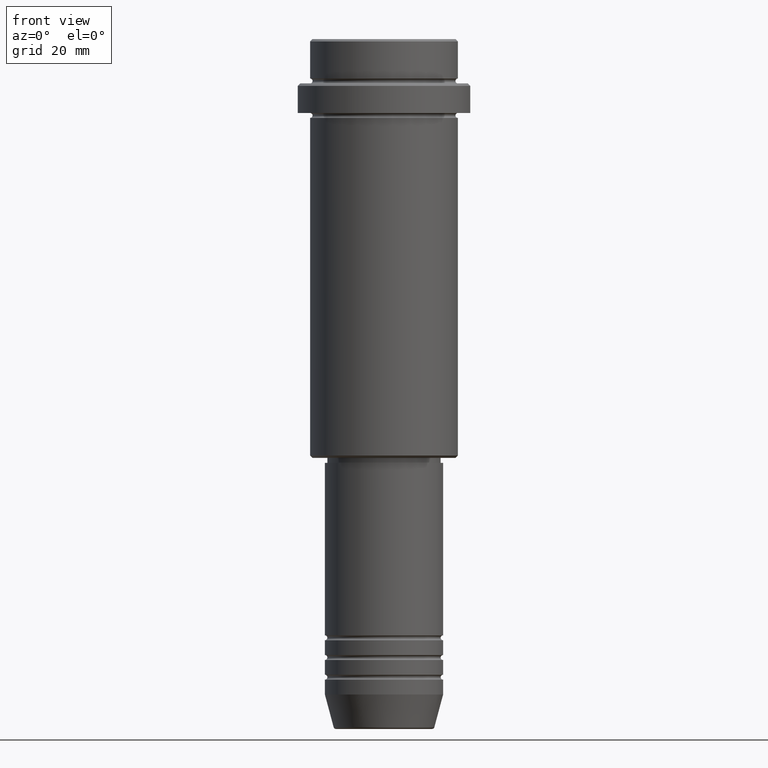
[diagram: clean part render]
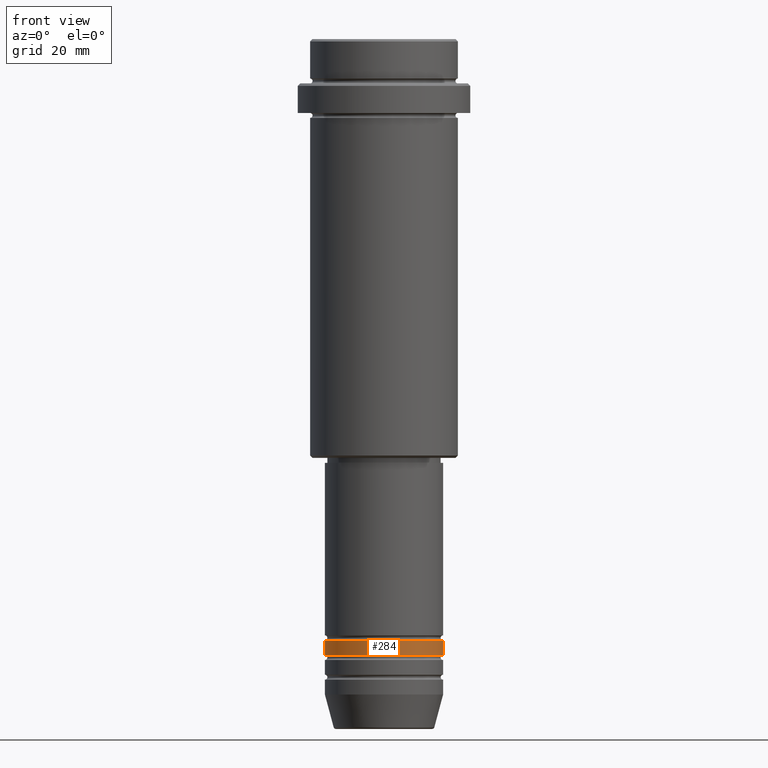
[diagram: same view with one face highlighted and labeled with its STEP entity id]
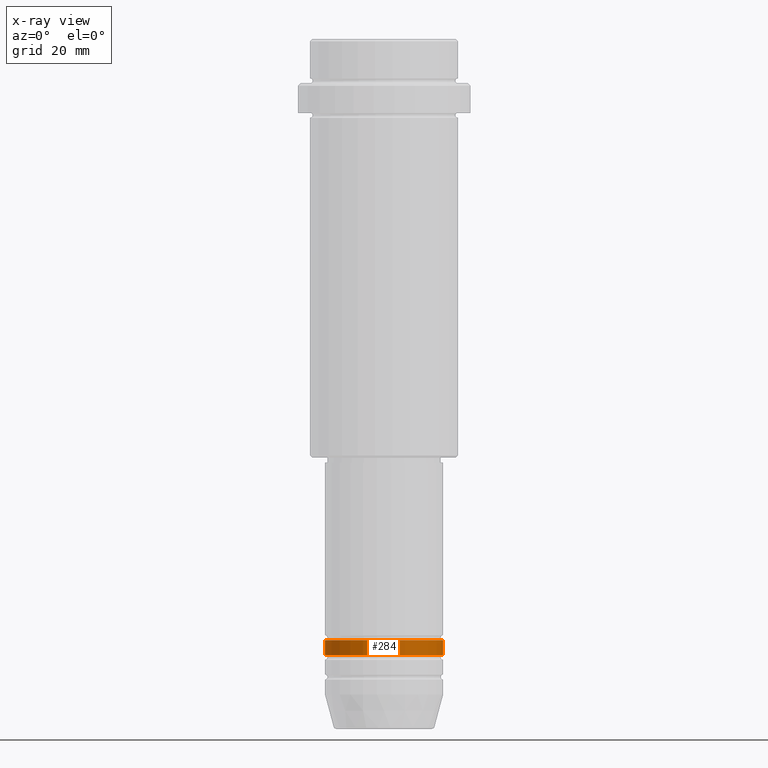
[diagram: x-ray of the same camera — body ghosted, the highlighted face saturated]
A machine part, front view. The second image highlights one B-rep face of the part: STEP entity #284.
The next image is the same camera in x-ray: the body ghosted, the highlighted face saturated — about 0% of this face is hidden behind the body in this view.
In plain terms, the highlighted cylindrical surface (partial cylindrical patch) has radius 12 mm, axis along (-0, -0, 1).
Its self-contained STEP definition (entity closure, byte-faithful):
#31 = EDGE_CURVE ( 'NONE', #768, #787, #1241, .T. ) ;
#45 = CARTESIAN_POINT ( 'NONE',  ( 12.00000000000000000, 0.000000000000000000, 0.000000000000000000 ) ) ;
#171 = CIRCLE ( 'NONE', #998, 12.00000000000000000 ) ;
#267 = DIRECTION ( 'NONE',  ( 1.000000000000000000, 0.000000000000000000, 0.000000000000000000 ) ) ;
#284 = ADVANCED_FACE ( 'NONE', ( #851 ), #318, .T. ) ;
#295 = DIRECTION ( 'NONE',  ( -0.000000000000000000, -0.000000000000000000, 1.000000000000000000 ) ) ;
#318 = CYLINDRICAL_SURFACE ( 'NONE', #997, 12.00000000000000000 ) ;
#322 = ORIENTED_EDGE ( 'NONE', *, *, #977, .F. ) ;
#439 = ORIENTED_EDGE ( 'NONE', *, *, #31, .F. ) ;
#452 = EDGE_CURVE ( 'NONE', #783, #911, #171, .T. ) ;
#469 = CARTESIAN_POINT ( 'NONE',  ( -12.00000000000000000, 1.469576158976823947E-15, -124.9999999999999005 ) ) ;
#492 = DIRECTION ( 'NONE',  ( -0.000000000000000000, -0.000000000000000000, 1.000000000000000000 ) ) ;
#513 = CARTESIAN_POINT ( 'NONE',  ( 12.00000000000000000, 0.000000000000000000, -124.9999999999999005 ) ) ;
#548 = ORIENTED_EDGE ( 'NONE', *, *, #452, .T. ) ;
#549 = CARTESIAN_POINT ( 'NONE',  ( 0.000000000000000000, 0.000000000000000000, 0.000000000000000000 ) ) ;
#550 = EDGE_LOOP ( 'NONE', ( #322, #548, #684, #439 ) ) ;
#586 = AXIS2_PLACEMENT_3D ( 'NONE', #619, #1043, #267 ) ;
#610 = CARTESIAN_POINT ( 'NONE',  ( 0.000000000000000000, 0.000000000000000000, -124.9999999999999005 ) ) ;
#616 = VECTOR ( 'NONE', #492, 1000.000000000000000 ) ;
#619 = CARTESIAN_POINT ( 'NONE',  ( 0.000000000000000000, 0.000000000000000000, -121.9999999999999005 ) ) ;
#652 = DIRECTION ( 'NONE',  ( -0.000000000000000000, -0.000000000000000000, 1.000000000000000000 ) ) ;
#684 = ORIENTED_EDGE ( 'NONE', *, *, #785, .T. ) ;
#768 = VERTEX_POINT ( 'NONE', #1234 ) ;
#783 = VERTEX_POINT ( 'NONE', #469 ) ;
#785 = EDGE_CURVE ( 'NONE', #911, #787, #1328, .T. ) ;
#787 = VERTEX_POINT ( 'NONE', #1145 ) ;
#848 = CARTESIAN_POINT ( 'NONE',  ( -12.00000000000000000, 1.469576158976823947E-15, 0.000000000000000000 ) ) ;
#851 = FACE_OUTER_BOUND ( 'NONE', #550, .T. ) ;
#911 = VERTEX_POINT ( 'NONE', #513 ) ;
#944 = DIRECTION ( 'NONE',  ( 1.000000000000000000, 0.000000000000000000, 0.000000000000000000 ) ) ;
#977 = EDGE_CURVE ( 'NONE', #783, #768, #1174, .T. ) ;
#997 = AXIS2_PLACEMENT_3D ( 'NONE', #549, #652, #1081 ) ;
#998 = AXIS2_PLACEMENT_3D ( 'NONE', #610, #1260, #944 ) ;
#1043 = DIRECTION ( 'NONE',  ( -0.000000000000000000, -0.000000000000000000, 1.000000000000000000 ) ) ;
#1081 = DIRECTION ( 'NONE',  ( 1.000000000000000000, 0.000000000000000000, 0.000000000000000000 ) ) ;
#1145 = CARTESIAN_POINT ( 'NONE',  ( 12.00000000000000000, 0.000000000000000000, -121.9999999999999005 ) ) ;
#1174 = LINE ( 'NONE', #848, #1245 ) ;
#1234 = CARTESIAN_POINT ( 'NONE',  ( -12.00000000000000000, 1.469576158976823947E-15, -121.9999999999999005 ) ) ;
#1241 = CIRCLE ( 'NONE', #586, 12.00000000000000000 ) ;
#1245 = VECTOR ( 'NONE', #295, 1000.000000000000000 ) ;
#1260 = DIRECTION ( 'NONE',  ( -0.000000000000000000, -0.000000000000000000, 1.000000000000000000 ) ) ;
#1328 = LINE ( 'NONE', #45, #616 ) ;